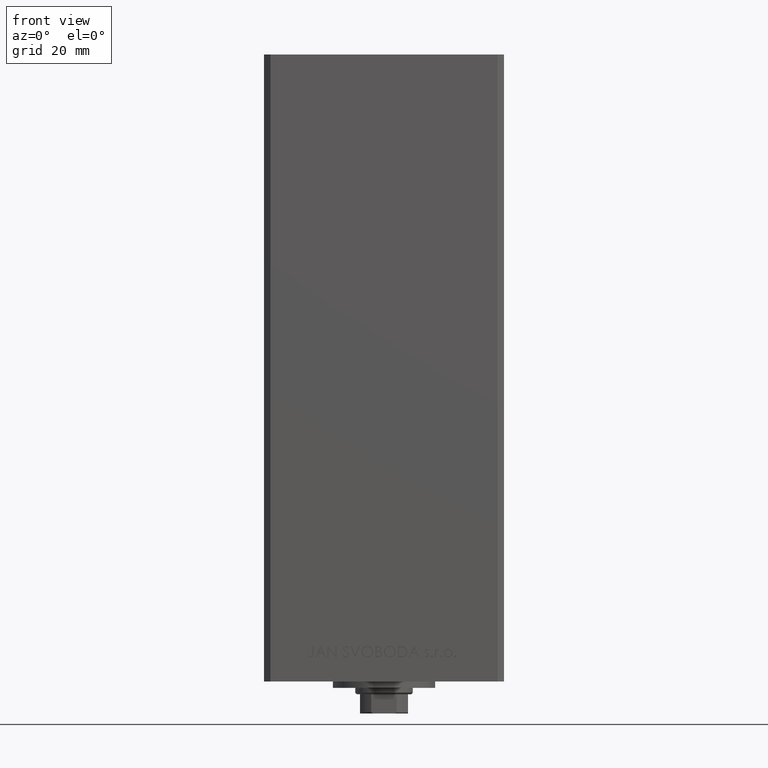
[diagram: clean part render]
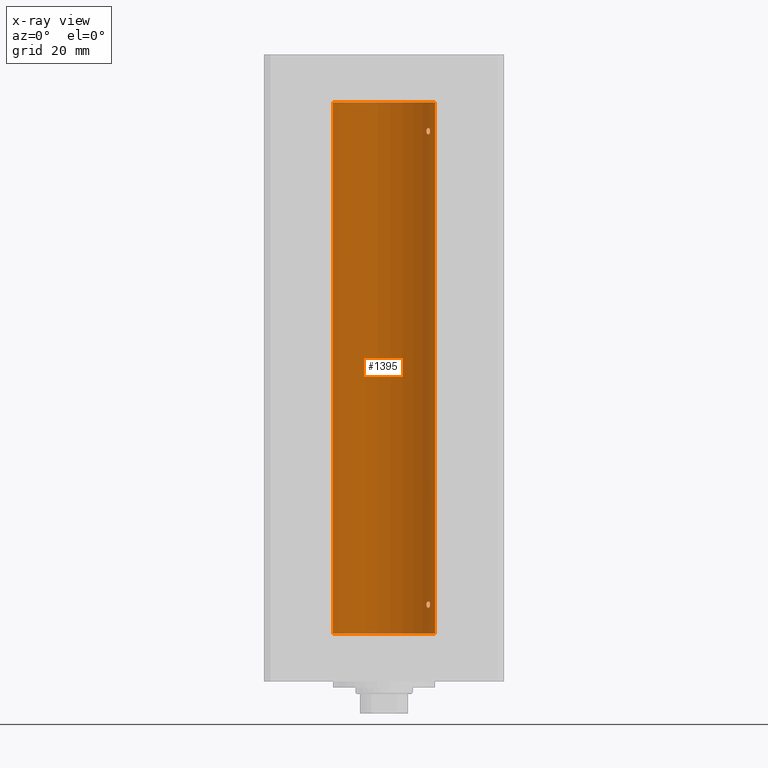
[diagram: x-ray — body ghosted, one internal face saturated and labeled with its STEP entity id]
A machine part, front view, then the same camera in x-ray: the body is ghosted and one INTERNAL B-rep face — a face not visible from any outside direction — is saturated and labeled: STEP entity #1395.
In plain terms, the highlighted cylindrical surface (partial cylindrical patch) has radius 16 mm, axis along (-0, -0, -1).
Its self-contained STEP definition (entity closure, byte-faithful):
#1175 = CARTESIAN_POINT ( 'NONE',  ( 14.38749456993835807, 6.999999999999894307, 9.141106977037484427 ) ) ;
#1206 = CARTESIAN_POINT ( 'NONE',  ( 14.31615587311060445, 7.145052533203043232, 8.462698705274526390 ) ) ;
#1395 = ADVANCED_FACE ( 'NONE', ( #2609, #37272, #48729 ), #17821, .F. ) ;
#1587 = CARTESIAN_POINT ( 'NONE',  ( 16.00000000000000000, 1.959434878635765131E-15, 166.0000000000000000 ) ) ;
#1694 = CARTESIAN_POINT ( 'NONE',  ( 13.92009581174526822, 7.889943515799717311, 7.998460909213807035 ) ) ;
#2066 = B_SPLINE_CURVE_WITH_KNOTS ( 'NONE', 3,
 ( #35862, #39349, #35127, #9184, #46835, #28352, #46347, #35374, #24379, #1694, #23649, #20883, #27626, #4946, #1206, #42599, #16412, #31625, #17134, #27382 ),
 .UNSPECIFIED., .F., .F.,
 ( 4, 2, 2, 2, 2, 2, 2, 2, 2, 4 ),
 ( 0.000000000000000000, 0.0004221896201403055413, 0.0008443792402806110826, 0.001266568860420916624, 0.001688758480561222165, 0.002110948100701527490, 0.002533137720841833248, 0.002955327340982138572, 0.003166422151052288633, 0.003377516961122438259 ),
 .UNSPECIFIED. ) ;
#2076 = DIRECTION ( 'NONE',  ( -0.000000000000000000, -0.000000000000000000, -1.000000000000000000 ) ) ;
#2177 = VERTEX_POINT ( 'NONE', #3731 ) ;
#2561 = EDGE_CURVE ( 'NONE', #21693, #9928, #28249, .T. ) ;
#2609 = FACE_OUTER_BOUND ( 'NONE', #16332, .T. ) ;
#3076 = VERTEX_POINT ( 'NONE', #37109 ) ;
#3145 = CARTESIAN_POINT ( 'NONE',  ( 13.22875655532295447, 8.999999999999996447, 156.9999999999999716 ) ) ;
#3650 = CARTESIAN_POINT ( 'NONE',  ( 13.92009581174527355, 7.889943515799701323, 155.9984609092138044 ) ) ;
#3731 = CARTESIAN_POINT ( 'NONE',  ( -16.00000000000000000, 0.000000000000000000, 0.000000000000000000 ) ) ;
#3898 = CARTESIAN_POINT ( 'NONE',  ( 14.36932461189096877, 7.037242368448795915, 156.7207139776694191 ) ) ;
#3946 = CARTESIAN_POINT ( 'NONE',  ( 14.37260515874679179, 7.030802976542521954, 157.2824317985811149 ) ) ;
#4103 = EDGE_CURVE ( 'NONE', #5092, #43069, #19604, .T. ) ;
#4189 = CARTESIAN_POINT ( 'NONE',  ( 14.38749456993875775, 6.999999999998771649, 156.9999999999994600 ) ) ;
#4415 = AXIS2_PLACEMENT_3D ( 'NONE', #21319, #11091, #14828 ) ;
#4946 = CARTESIAN_POINT ( 'NONE',  ( 14.27574973237574696, 7.225997637813494023, 8.353078210746339494 ) ) ;
#5081 = EDGE_CURVE ( 'NONE', #43069, #5092, #34490, .T. ) ;
#5092 = VERTEX_POINT ( 'NONE', #34319 ) ;
#5409 = CARTESIAN_POINT ( 'NONE',  ( 14.27601081693604712, 7.225489892961965310, 9.646446674983275571 ) ) ;
#5680 = EDGE_CURVE ( 'NONE', #9928, #2177, #10926, .T. ) ;
#5892 = CARTESIAN_POINT ( 'NONE',  ( 14.37260515874679534, 7.030802976542521954, 9.282431798581109561 ) ) ;
#6585 = LINE ( 'NONE', #33508, #36971 ) ;
#7144 = CARTESIAN_POINT ( 'NONE',  ( 14.27574973237574874, 7.225997637813491359, 156.3530782107463040 ) ) ;
#7399 = CARTESIAN_POINT ( 'NONE',  ( 13.49787029139622696, 8.591848682073997878, 156.1838145871425638 ) ) ;
#7699 = CARTESIAN_POINT ( 'NONE',  ( 13.70635209652259334, 8.259251269739747769, 157.9961002086728570 ) ) ;
#7707 = EDGE_CURVE ( 'NONE', #21693, #17986, #7775, .T. ) ;
#7775 = CIRCLE ( 'NONE', #34071, 16.00000000000000000 ) ;
#8914 = CARTESIAN_POINT ( 'NONE',  ( 14.12440581436493225, 7.519967855344579455, 9.916845667547992349 ) ) ;
#9184 = CARTESIAN_POINT ( 'NONE',  ( 13.32443414199768839, 8.857985377928104143, 8.468605830316136007 ) ) ;
#9928 = VERTEX_POINT ( 'NONE', #25542 ) ;
#9992 = ORIENTED_EDGE ( 'NONE', *, *, #2561, .F. ) ;
#10892 = ORIENTED_EDGE ( 'NONE', *, *, #26387, .T. ) ;
#10926 = CIRCLE ( 'NONE', #43560, 16.00000000000000000 ) ;
#11091 = DIRECTION ( 'NONE',  ( -0.000000000000000000, -0.000000000000000000, -1.000000000000000000 ) ) ;
#12018 = CARTESIAN_POINT ( 'NONE',  ( 16.00000000000000000, 1.959434878635765131E-15, 166.0000000000000000 ) ) ;
#13137 = CARTESIAN_POINT ( 'NONE',  ( 13.37722806521492025, 8.778496895713756132, 9.640492215702138878 ) ) ;
#14399 = ORIENTED_EDGE ( 'NONE', *, *, #7707, .T. ) ;
#14666 = CARTESIAN_POINT ( 'NONE',  ( 14.38749456993835807, 6.999999999999900524, 157.1411069770375093 ) ) ;
#14828 = DIRECTION ( 'NONE',  ( -1.000000000000000000, 0.000000000000000000, 0.000000000000000000 ) ) ;
#14870 = CARTESIAN_POINT ( 'NONE',  ( 14.38374727663542707, 7.007716049903077504, 156.8576079294365400 ) ) ;
#15165 = CARTESIAN_POINT ( 'NONE',  ( 13.98853479819182866, 7.771757428685186042, 158.0036593920346775 ) ) ;
#15430 = DIRECTION ( 'NONE',  ( 1.000000000000000000, 0.000000000000000000, 0.000000000000000000 ) ) ;
#16332 = EDGE_LOOP ( 'NONE', ( #9992, #14399, #10892, #37920 ) ) ;
#16412 = CARTESIAN_POINT ( 'NONE',  ( 14.36932461189096877, 7.037242368448794139, 8.720713977669424466 ) ) ;
#17134 = CARTESIAN_POINT ( 'NONE',  ( 14.38749456993828879, 7.000000000000026645, 8.929291109518763037 ) ) ;
#17821 = CYLINDRICAL_SURFACE ( 'NONE', #4415, 16.00000000000000000 ) ;
#17986 = VERTEX_POINT ( 'NONE', #28508 ) ;
#18353 = CARTESIAN_POINT ( 'NONE',  ( 13.56526576050684518, 8.485384079562161119, 156.1169905381310912 ) ) ;
#18403 = CARTESIAN_POINT ( 'NONE',  ( 13.22875655532295092, 8.999999999999994671, 157.1426595155012649 ) ) ;
#19156 = CARTESIAN_POINT ( 'NONE',  ( 13.55739033881264710, 8.499771822136690247, 157.9029833364132855 ) ) ;
#19604 = B_SPLINE_CURVE_WITH_KNOTS ( 'NONE', 3,
 ( #4189, #14666, #3946, #26374, #26628, #22893, #15165, #7699, #19156, #37364, #49072, #41342, #18403, #33616 ),
 .UNSPECIFIED., .F., .F.,
 ( 4, 2, 2, 2, 2, 2, 4 ),
 ( 0.003377516961122441295, 0.003798778705083836419, 0.004220040449045231977, 0.005062563936968072532, 0.005905087424890913088, 0.006326349168852335100, 0.006747610912813756245 ),
 .UNSPECIFIED. ) ;
#20883 = CARTESIAN_POINT ( 'NONE',  ( 14.11701305531884287, 7.531808851198022126, 8.107366783090686368 ) ) ;
#21090 = CARTESIAN_POINT ( 'NONE',  ( 13.25022586032984329, 8.968609469449802418, 9.283289638962903823 ) ) ;
#21319 = CARTESIAN_POINT ( 'NONE',  ( 0.000000000000000000, 0.000000000000000000, 166.0000000000000000 ) ) ;
#21324 = ORIENTED_EDGE ( 'NONE', *, *, #4103, .F. ) ;
#21693 = VERTEX_POINT ( 'NONE', #12018 ) ;
#21933 = CARTESIAN_POINT ( 'NONE',  ( 0.000000000000000000, 0.000000000000000000, 166.0000000000000000 ) ) ;
#22346 = CARTESIAN_POINT ( 'NONE',  ( 14.35867515080208712, 7.058999333127631282, 156.6544211985381594 ) ) ;
#22597 = CARTESIAN_POINT ( 'NONE',  ( 14.38749456993875775, 6.999999999998771649, 156.9999999999994600 ) ) ;
#22605 = B_SPLINE_CURVE_WITH_KNOTS ( 'NONE', 3,
 ( #32071, #1175, #5892, #32562, #5409, #8914, #36064, #31592, #43056, #13137, #47531, #21090, #47292, #23866 ),
 .UNSPECIFIED., .F., .F.,
 ( 4, 2, 2, 2, 2, 2, 4 ),
 ( 0.003377516961122438259, 0.003798778705083848996, 0.004220040449045259733, 0.005062563936968083808, 0.005905087424890908751, 0.006326349168852319488, 0.006747610912813730225 ),
 .UNSPECIFIED. ) ;
#22847 = CARTESIAN_POINT ( 'NONE',  ( 13.25010819131476048, 8.968783812673557065, 156.7171986622837210 ) ) ;
#22893 = CARTESIAN_POINT ( 'NONE',  ( 14.12440581436492515, 7.519967855344591001, 157.9168456675479888 ) ) ;
#23649 = CARTESIAN_POINT ( 'NONE',  ( 13.98799506618804855, 7.768796316246572964, 8.018907818619863903 ) ) ;
#23866 = CARTESIAN_POINT ( 'NONE',  ( 13.22875655532295447, 8.999999999999998224, 8.999999999999994671 ) ) ;
#24379 = CARTESIAN_POINT ( 'NONE',  ( 13.77746685470184040, 8.136441676695669756, 8.001713142955473757 ) ) ;
#24933 = DIRECTION ( 'NONE',  ( 1.000000000000000000, 0.000000000000000000, 0.000000000000000000 ) ) ;
#25542 = CARTESIAN_POINT ( 'NONE',  ( 16.00000000000000000, 1.959434878635765131E-15, 0.000000000000000000 ) ) ;
#26374 = CARTESIAN_POINT ( 'NONE',  ( 14.31678893103185679, 7.143775209822727845, 157.5347800480706724 ) ) ;
#26387 = EDGE_CURVE ( 'NONE', #17986, #2177, #6585, .T. ) ;
#26628 = CARTESIAN_POINT ( 'NONE',  ( 14.27601081693604179, 7.225489892961972416, 157.6464466749833093 ) ) ;
#27195 = CARTESIAN_POINT ( 'NONE',  ( 14.38749456993875953, 6.999999999998769873, 8.999999999999467093 ) ) ;
#27382 = CARTESIAN_POINT ( 'NONE',  ( 14.38749456993875953, 6.999999999998769873, 8.999999999999467093 ) ) ;
#27626 = CARTESIAN_POINT ( 'NONE',  ( 14.17516445690067428, 7.421373518623910037, 8.173695665549439937 ) ) ;
#28249 = LINE ( 'NONE', #1587, #34715 ) ;
#28352 = CARTESIAN_POINT ( 'NONE',  ( 13.49787029139620920, 8.591848682074017418, 8.183814587142569152 ) ) ;
#28508 = CARTESIAN_POINT ( 'NONE',  ( -16.00000000000000000, 0.000000000000000000, 166.0000000000000000 ) ) ;
#29815 = CARTESIAN_POINT ( 'NONE',  ( 13.32443414199769194, 8.857985377928093484, 156.4686058303161644 ) ) ;
#30320 = CARTESIAN_POINT ( 'NONE',  ( 13.77746685470184929, 8.136441676695655545, 156.0017131429554524 ) ) ;
#30813 = CARTESIAN_POINT ( 'NONE',  ( 13.70633586603035781, 8.255576010093792050, 156.0253286105015036 ) ) ;
#31592 = CARTESIAN_POINT ( 'NONE',  ( 13.70635209652260222, 8.259251269739738888, 9.996100208672867637 ) ) ;
#31625 = CARTESIAN_POINT ( 'NONE',  ( 14.38374727663542707, 7.007716049903074840, 8.857607929436484895 ) ) ;
#31813 = EDGE_LOOP ( 'NONE', ( #46593, #33332 ) ) ;
#32071 = CARTESIAN_POINT ( 'NONE',  ( 14.38749456993875953, 6.999999999998769873, 8.999999999999467093 ) ) ;
#32562 = CARTESIAN_POINT ( 'NONE',  ( 14.31678893103186390, 7.143775209822729622, 9.534780048070684799 ) ) ;
#32743 = CARTESIAN_POINT ( 'NONE',  ( 13.22875655532295447, 8.999999999999996447, 156.9999999999999716 ) ) ;
#33332 = ORIENTED_EDGE ( 'NONE', *, *, #42484, .F. ) ;
#33508 = CARTESIAN_POINT ( 'NONE',  ( -16.00000000000000000, 0.000000000000000000, 166.0000000000000000 ) ) ;
#33616 = CARTESIAN_POINT ( 'NONE',  ( 13.22875655532295447, 8.999999999999996447, 156.9999999999999716 ) ) ;
#34071 = AXIS2_PLACEMENT_3D ( 'NONE', #21933, #41139, #24933 ) ;
#34137 = CARTESIAN_POINT ( 'NONE',  ( 0.000000000000000000, 0.000000000000000000, 0.000000000000000000 ) ) ;
#34319 = CARTESIAN_POINT ( 'NONE',  ( 14.38749456993875775, 6.999999999998771649, 156.9999999999994600 ) ) ;
#34490 = B_SPLINE_CURVE_WITH_KNOTS ( 'NONE', 3,
 ( #3145, #41294, #22847, #29815, #45033, #7399, #18353, #30813, #30320, #3650, #41796, #49274, #38068, #7144, #41047, #22346, #3898, #14870, #45531, #22597 ),
 .UNSPECIFIED., .F., .F.,
 ( 4, 2, 2, 2, 2, 2, 2, 2, 2, 4 ),
 ( 2.818592028051833686E-17, 0.0004221896201403299359, 0.0008443792402806316825, 0.001266568860420933538, 0.001688758480561235176, 0.002110948100701536597, 0.002533137720841838886, 0.002955327340982140307, 0.003166422151052290801, 0.003377516961122441295 ),
 .UNSPECIFIED. ) ;
#34715 = VECTOR ( 'NONE', #2076, 1000.000000000000000 ) ;
#35127 = CARTESIAN_POINT ( 'NONE',  ( 13.25010819131475159, 8.968783812673564171, 8.717198662283735189 ) ) ;
#35374 = CARTESIAN_POINT ( 'NONE',  ( 13.70633586603034715, 8.255576010093811590, 8.025328610501505366 ) ) ;
#35862 = CARTESIAN_POINT ( 'NONE',  ( 13.22875655532295447, 8.999999999999998224, 8.999999999999994671 ) ) ;
#36064 = CARTESIAN_POINT ( 'NONE',  ( 13.98853479819183043, 7.771757428685174496, 10.00365939203466681 ) ) ;
#36418 = VERTEX_POINT ( 'NONE', #27195 ) ;
#36848 = EDGE_CURVE ( 'NONE', #3076, #36418, #2066, .T. ) ;
#36971 = VECTOR ( 'NONE', #44467, 1000.000000000000000 ) ;
#37109 = CARTESIAN_POINT ( 'NONE',  ( 13.22875655532295447, 8.999999999999998224, 8.999999999999994671 ) ) ;
#37272 = FACE_BOUND ( 'NONE', #42608, .T. ) ;
#37364 = CARTESIAN_POINT ( 'NONE',  ( 13.37722806521492203, 8.778496895713763237, 157.6404922157021815 ) ) ;
#37920 = ORIENTED_EDGE ( 'NONE', *, *, #5680, .F. ) ;
#38068 = CARTESIAN_POINT ( 'NONE',  ( 14.17516445690067250, 7.421373518623910037, 156.1736956655494453 ) ) ;
#39349 = CARTESIAN_POINT ( 'NONE',  ( 13.22875655532296157, 9.000000000000000000, 8.857026260935734641 ) ) ;
#41047 = CARTESIAN_POINT ( 'NONE',  ( 14.31615587311060978, 7.145052533203036127, 156.4626987052745619 ) ) ;
#41139 = DIRECTION ( 'NONE',  ( -0.000000000000000000, 0.000000000000000000, 1.000000000000000000 ) ) ;
#41294 = CARTESIAN_POINT ( 'NONE',  ( 13.22875655532295802, 8.999999999999998224, 156.8570262609357258 ) ) ;
#41342 = CARTESIAN_POINT ( 'NONE',  ( 13.25022586032983618, 8.968609469449805971, 157.2832896389629127 ) ) ;
#41577 = ORIENTED_EDGE ( 'NONE', *, *, #5081, .F. ) ;
#41796 = CARTESIAN_POINT ( 'NONE',  ( 13.98799506618805211, 7.768796316246563194, 156.0189078186198799 ) ) ;
#42484 = EDGE_CURVE ( 'NONE', #36418, #3076, #22605, .T. ) ;
#42599 = CARTESIAN_POINT ( 'NONE',  ( 14.35867515080208356, 7.058999333127636611, 8.654421198538130966 ) ) ;
#42608 = EDGE_LOOP ( 'NONE', ( #41577, #21324 ) ) ;
#43056 = CARTESIAN_POINT ( 'NONE',  ( 13.55739033881265065, 8.499771822136686694, 9.902983336413296200 ) ) ;
#43069 = VERTEX_POINT ( 'NONE', #32743 ) ;
#43560 = AXIS2_PLACEMENT_3D ( 'NONE', #34137, #49345, #15430 ) ;
#44467 = DIRECTION ( 'NONE',  ( -0.000000000000000000, -0.000000000000000000, -1.000000000000000000 ) ) ;
#45033 = CARTESIAN_POINT ( 'NONE',  ( 13.37714181818050641, 8.778635597591444295, 156.3595547667462995 ) ) ;
#45531 = CARTESIAN_POINT ( 'NONE',  ( 14.38749456993829057, 7.000000000000029310, 156.9292911095188288 ) ) ;
#46347 = CARTESIAN_POINT ( 'NONE',  ( 13.56526576050683452, 8.485384079562178883, 8.116990538131117816 ) ) ;
#46593 = ORIENTED_EDGE ( 'NONE', *, *, #36848, .F. ) ;
#46835 = CARTESIAN_POINT ( 'NONE',  ( 13.37714181818049575, 8.778635597591465611, 8.359554766746297716 ) ) ;
#47292 = CARTESIAN_POINT ( 'NONE',  ( 13.22875655532295625, 9.000000000000000000, 9.142659515501296852 ) ) ;
#47531 = CARTESIAN_POINT ( 'NONE',  ( 13.32447566991143439, 8.857922402414480700, 9.531438119903825168 ) ) ;
#48729 = FACE_BOUND ( 'NONE', #31813, .T. ) ;
#49072 = CARTESIAN_POINT ( 'NONE',  ( 13.32447566991143617, 8.857922402414489582, 157.5314381199037541 ) ) ;
#49274 = CARTESIAN_POINT ( 'NONE',  ( 14.11701305531884465, 7.531808851198014132, 156.1073667830907539 ) ) ;
#49345 = DIRECTION ( 'NONE',  ( -0.000000000000000000, 0.000000000000000000, 1.000000000000000000 ) ) ;